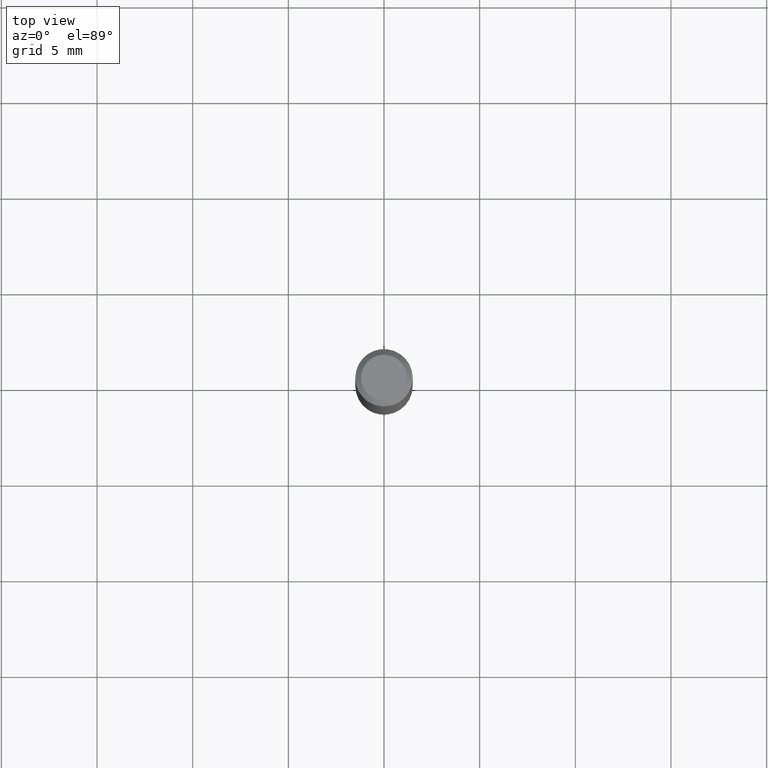
[diagram: clean part render]
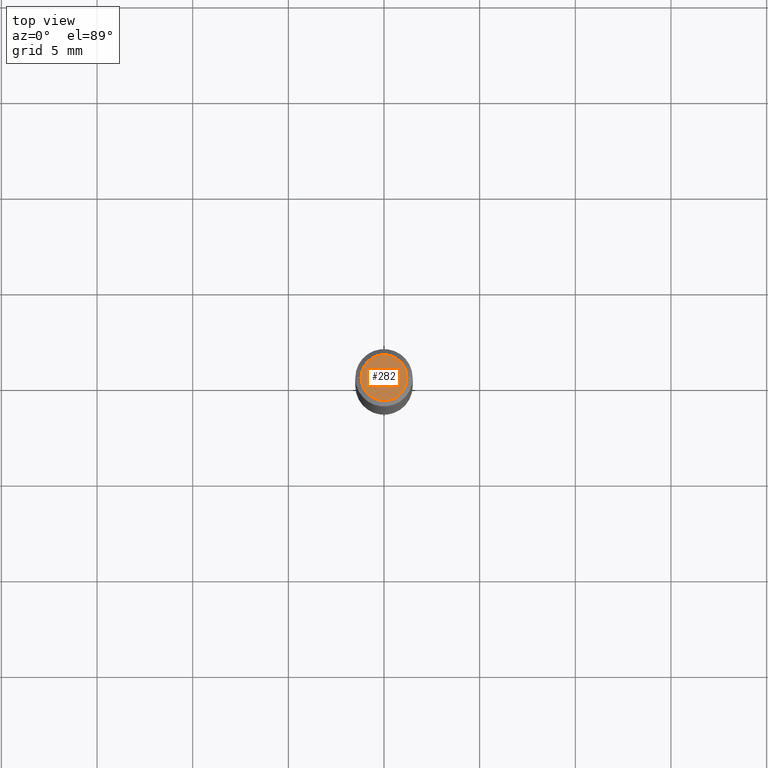
[diagram: same view with one face highlighted and labeled with its STEP entity id]
A machine part, top view. The second image highlights one B-rep face of the part: STEP entity #282.
In plain terms, the highlighted planar face has unit normal (0, -0, -1).
Its self-contained STEP definition (entity closure, byte-faithful):
#27 = DIRECTION ( 'NONE',  ( 2.438088387897960049E-29, -3.491481338843145188E-15, -1.000000000000000000 ) ) ;
#30 = ORIENTED_EDGE ( 'NONE', *, *, #170, .T. ) ;
#46 = ORIENTED_EDGE ( 'NONE', *, *, #330, .T. ) ;
#69 = PLANE ( 'NONE',  #124 ) ;
#76 = VERTEX_POINT ( 'NONE', #354 ) ;
#124 = AXIS2_PLACEMENT_3D ( 'NONE', #225, #27, #275 ) ;
#136 = CIRCLE ( 'NONE', #279, 0.04724000000000000421 ) ;
#142 = DIRECTION ( 'NONE',  ( -2.445468806185136597E-29, 3.491481338843145583E-15, 1.000000000000000000 ) ) ;
#154 = CARTESIAN_POINT ( 'NONE',  ( -0.04724000000000000421, 3.504923541997677355E-16, -3.380025165670481712E-19 ) ) ;
#170 = EDGE_CURVE ( 'NONE', #76, #360, #136, .T. ) ;
#207 = DIRECTION ( 'NONE',  ( 1.000000000000000000, -6.982962677686266711E-15, 4.876185090822587894E-29 ) ) ;
#225 = CARTESIAN_POINT ( 'NONE',  ( 4.132873053354867254E-48, -5.900647395337818946E-34, -1.690012582823346072E-19 ) ) ;
#242 = EDGE_LOOP ( 'NONE', ( #46, #30 ) ) ;
#250 = DIRECTION ( 'NONE',  ( -2.445468806185136597E-29, 3.491481338843145583E-15, 1.000000000000000000 ) ) ;
#275 = DIRECTION ( 'NONE',  ( -1.000000000000000000, 6.982962677686265922E-15, -4.876176775795935793E-29 ) ) ;
#279 = AXIS2_PLACEMENT_3D ( 'NONE', #477, #250, #207 ) ;
#282 = ADVANCED_FACE ( 'NONE', ( #311 ), #69, .F. ) ;
#307 = DIRECTION ( 'NONE',  ( 1.000000000000000000, -6.982962677686266711E-15, 4.876185090822587894E-29 ) ) ;
#311 = FACE_OUTER_BOUND ( 'NONE', #242, .T. ) ;
#330 = EDGE_CURVE ( 'NONE', #360, #76, #452, .T. ) ;
#345 = CARTESIAN_POINT ( 'NONE',  ( 8.265746106709734507E-48, -1.180129479067563789E-33, -3.380025165646692144E-19 ) ) ;
#354 = CARTESIAN_POINT ( 'NONE',  ( 0.04724000000000000421, -3.852183633974369345E-16, -3.380025165621689721E-19 ) ) ;
#360 = VERTEX_POINT ( 'NONE', #154 ) ;
#423 = AXIS2_PLACEMENT_3D ( 'NONE', #345, #142, #307 ) ;
#452 = CIRCLE ( 'NONE', #423, 0.04724000000000000421 ) ;
#477 = CARTESIAN_POINT ( 'NONE',  ( 8.265746106709734507E-48, -1.180129479067563789E-33, -3.380025165646692144E-19 ) ) ;